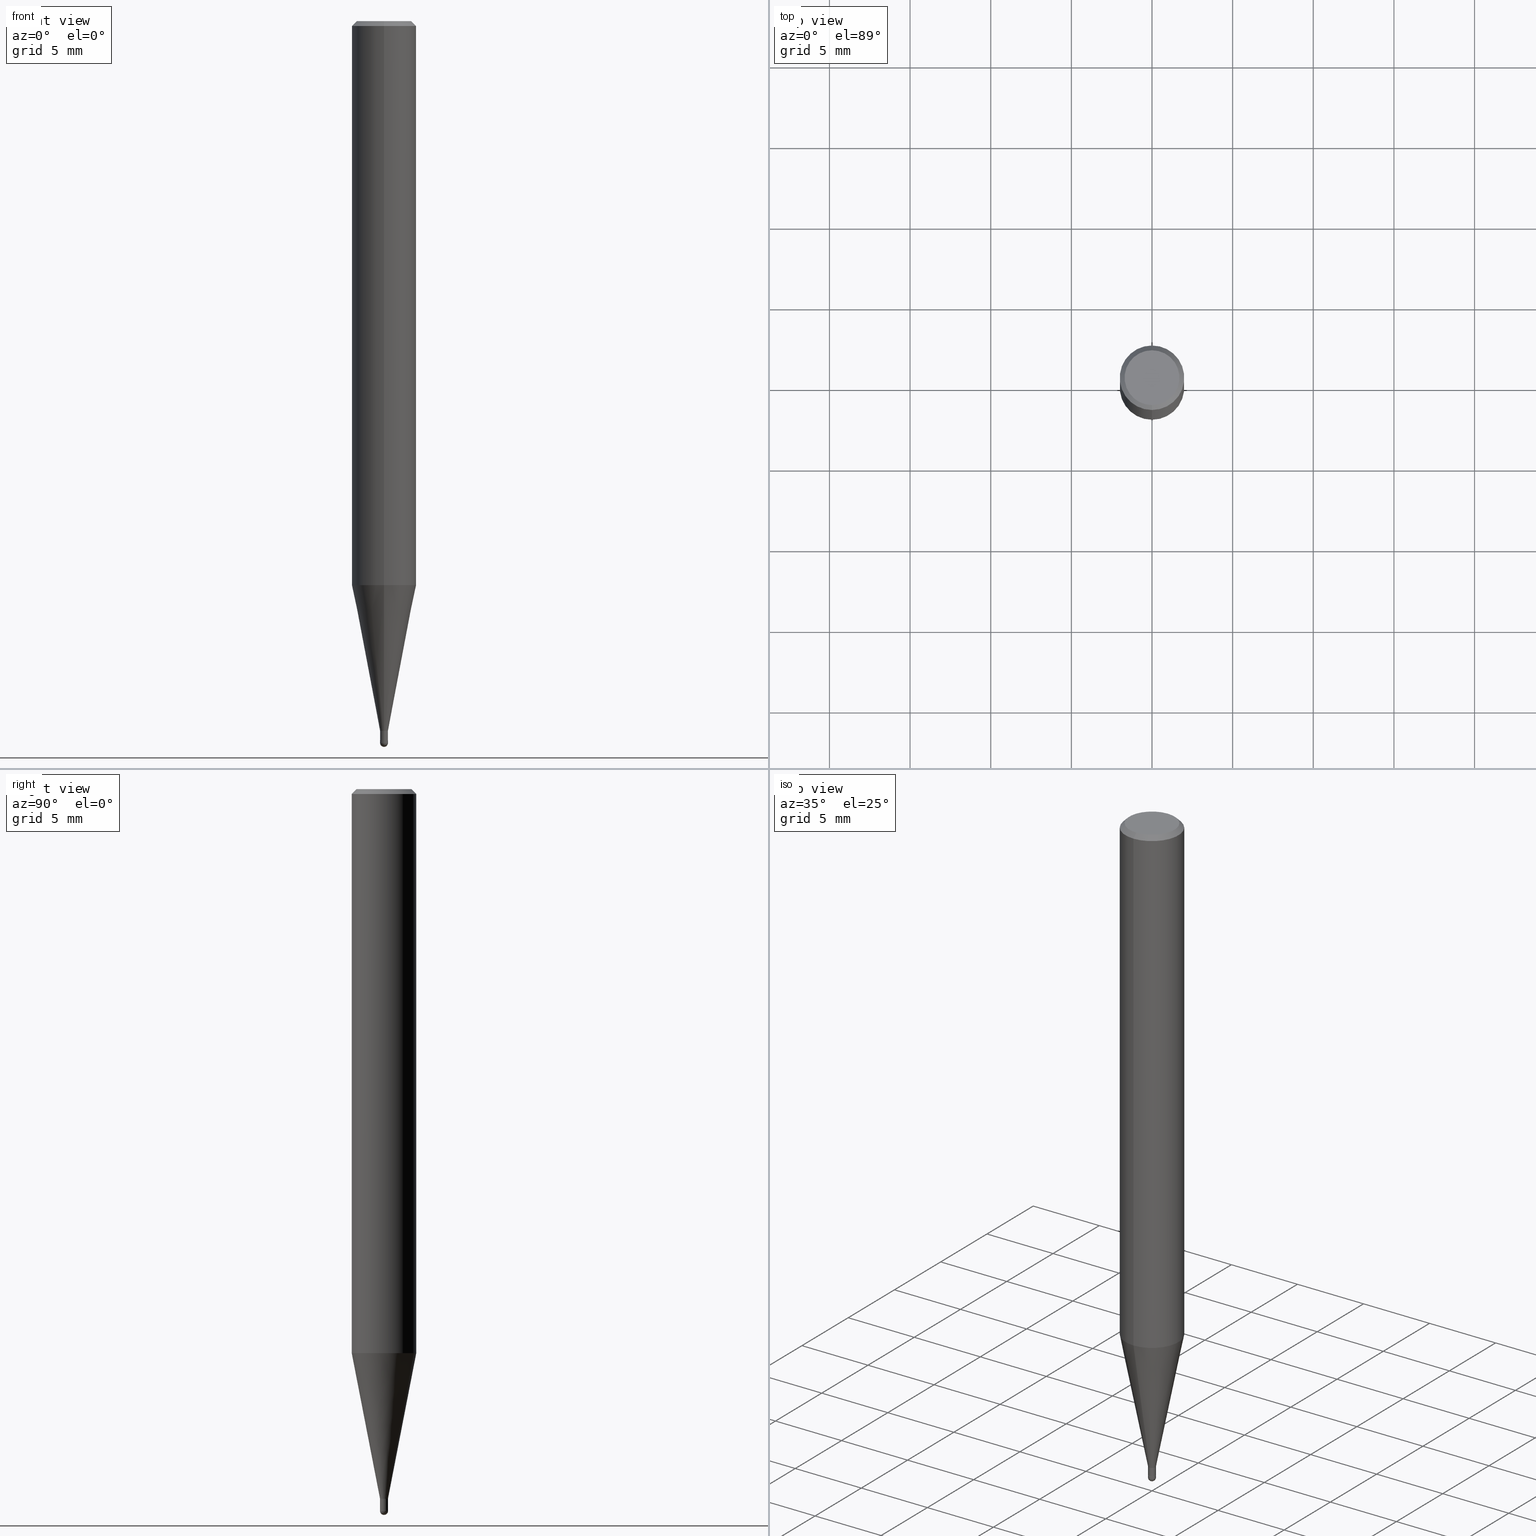
[diagram: canonical four-view strip — front | top / right | iso, engineering-drawing reading convention]
A machine part, canonical four-view strip (front | top / right | iso — engineering-drawing reading convention). The complete STEP part file that produces these views, byte-faithful:
ISO-10303-21;
HEADER;
FILE_DESCRIPTION(('no description'),'unknown implementation level');
FILE_NAME('CSELB2005-010-Huellk.stp','  ',('CIMSOURCE GmbH'),('CADClick - KiM GmbH - www.kimweb.de'),'unknown preprocess','ACIS','unknown authorization');
FILE_SCHEMA(('automotive_design'));
ENDSEC;
DATA;
#1=MECHANICAL_DESIGN_GEOMETRIC_PRESENTATION_REPRESENTATION(' ',(#14,#15,#16,#17,#18,#19,#20,#21,#22,#23,#24,#25,#26,#27,#28,#29,#30,#31,#32,#33,#34,#35,#36,#37,#38,#39,#40,#41,#42,#43,#44,#45,#46,#47,#48,#49,#50,#51,#52,#53,#54,#55,#56,#57,#58,#59,#60,#61,#62,#63,#64,#65,#66,#67,#68,#69,#70,#71,#72,#73,#74),#10);
#2=PRODUCT_DEFINITION_CONTEXT('',#75,'design');
#3=APPLICATION_PROTOCOL_DEFINITION('INTERNATIONAL STANDARD','automotive_design',1994,#75);
#4=PRODUCT_CATEGORY_RELATIONSHIP('NONE','NONE',#76,#77);
#5=SHAPE_DEFINITION_REPRESENTATION(#78,#79);
#6=PRODUCT_DEFINITION_CONTEXT('',#80,'design');
#7=APPLICATION_PROTOCOL_DEFINITION('INTERNATIONAL STANDARD','automotive_design',1994,#80);
#8=PRODUCT_CATEGORY_RELATIONSHIP('NONE','NONE',#81,#82);
#9=SHAPE_DEFINITION_REPRESENTATION(#83,#84);
#10= (GEOMETRIC_REPRESENTATION_CONTEXT(3)GLOBAL_UNCERTAINTY_ASSIGNED_CONTEXT((#87))GLOBAL_UNIT_ASSIGNED_CONTEXT((#89,#90,#91))REPRESENTATION_CONTEXT('NONE','WORKSPACE'));
#14=STYLED_ITEM('',(#93),#94);
#15=STYLED_ITEM('',(#95),#96);
#16=STYLED_ITEM('',(#97),#98);
#17=STYLED_ITEM('',(#99),#100);
#18=STYLED_ITEM('',(#101),#102);
#19=STYLED_ITEM('',(#103),#104);
#20=STYLED_ITEM('',(#105),#106);
#21=STYLED_ITEM('',(#107),#108);
#22=STYLED_ITEM('',(#109),#110);
#23=STYLED_ITEM('',(#111),#112);
#24=STYLED_ITEM('',(#113),#114);
#25=STYLED_ITEM('',(#115),#116);
#26=STYLED_ITEM('',(#117),#118);
#27=STYLED_ITEM('',(#119),#120);
#28=STYLED_ITEM('',(#121),#122);
#29=STYLED_ITEM('',(#123),#124);
#30=STYLED_ITEM('',(#125),#126);
#31=STYLED_ITEM('',(#127),#128);
#32=STYLED_ITEM('',(#129),#130);
#33=STYLED_ITEM('',(#131),#132);
#34=STYLED_ITEM('',(#133),#134);
#35=STYLED_ITEM('',(#135),#136);
#36=STYLED_ITEM('',(#137),#138);
#37=STYLED_ITEM('',(#139),#140);
#38=STYLED_ITEM('',(#141),#142);
#39=STYLED_ITEM('',(#143),#144);
#40=STYLED_ITEM('',(#145),#146);
#41=STYLED_ITEM('',(#147),#148);
#42=STYLED_ITEM('',(#149),#150);
#43=STYLED_ITEM('',(#151),#152);
#44=STYLED_ITEM('',(#153),#154);
#45=STYLED_ITEM('',(#155),#156);
#46=STYLED_ITEM('',(#157),#158);
#47=STYLED_ITEM('',(#159),#160);
#48=STYLED_ITEM('',(#161),#162);
#49=STYLED_ITEM('',(#163),#164);
#50=STYLED_ITEM('',(#165),#166);
#51=STYLED_ITEM('',(#167),#168);
#52=STYLED_ITEM('',(#169),#170);
#53=STYLED_ITEM('',(#171),#172);
#54=STYLED_ITEM('',(#173),#174);
#55=STYLED_ITEM('',(#175),#176);
#56=STYLED_ITEM('',(#177),#178);
#57=STYLED_ITEM('',(#179),#180);
#58=STYLED_ITEM('',(#181),#182);
#59=STYLED_ITEM('',(#183),#184);
#60=STYLED_ITEM('',(#185),#186);
#61=STYLED_ITEM('',(#187),#188);
#62=STYLED_ITEM('',(#189),#190);
#63=STYLED_ITEM('',(#191),#192);
#64=STYLED_ITEM('',(#193),#194);
#65=STYLED_ITEM('',(#195),#196);
#66=STYLED_ITEM('',(#197),#198);
#67=STYLED_ITEM('',(#199),#200);
#68=STYLED_ITEM('',(#201),#202);
#69=STYLED_ITEM('',(#203),#204);
#70=STYLED_ITEM('',(#205),#206);
#71=STYLED_ITEM('',(#207),#208);
#72=STYLED_ITEM('',(#209),#210);
#73=STYLED_ITEM('',(#211),#212);
#74=STYLED_ITEM('',(#213),#214);
#75=APPLICATION_CONTEXT(' ');
#76=PRODUCT_CATEGORY('part','NONE');
#77=PRODUCT_RELATED_PRODUCT_CATEGORY('detail',' ',(#215));
#78=PRODUCT_DEFINITION_SHAPE('NONE','NONE',#216);
#79=ADVANCED_BREP_SHAPE_REPRESENTATION('1',(#140,#217),#10);
#80=APPLICATION_CONTEXT(' ');
#81=PRODUCT_CATEGORY('part','NONE');
#82=PRODUCT_RELATED_PRODUCT_CATEGORY('detail',' ',(#218));
#83=PRODUCT_DEFINITION_SHAPE('NONE','NONE',#219);
#84=ADVANCED_BREP_SHAPE_REPRESENTATION('2',(#182,#220),#10);
#87=UNCERTAINTY_MEASURE_WITH_UNIT(LENGTH_MEASURE(1.0E-006),#89,'','');
#89= (CONVERSION_BASED_UNIT('MILLIMETRE',#223)LENGTH_UNIT()NAMED_UNIT(#226));
#90= (NAMED_UNIT(#228)PLANE_ANGLE_UNIT()SI_UNIT($,.RADIAN.));
#91= (NAMED_UNIT(#228)SOLID_ANGLE_UNIT()SI_UNIT($,.STERADIAN.));
#93=PRESENTATION_STYLE_ASSIGNMENT((#234));
#94=VERTEX_POINT('',#235);
#95=PRESENTATION_STYLE_ASSIGNMENT((#236));
#96=EDGE_CURVE('',#112,#204,#237,.T.);
#97=PRESENTATION_STYLE_ASSIGNMENT((#238));
#98=VERTEX_POINT('',#239);
#99=PRESENTATION_STYLE_ASSIGNMENT((#240));
#100=EDGE_CURVE('',#208,#188,#241,.T.);
#101=PRESENTATION_STYLE_ASSIGNMENT((#242));
#102=EDGE_CURVE('',#214,#158,#243,.T.);
#103=PRESENTATION_STYLE_ASSIGNMENT((#244));
#104=EDGE_CURVE('',#132,#112,#245,.T.);
#105=PRESENTATION_STYLE_ASSIGNMENT((#246));
#106=EDGE_CURVE('',#204,#170,#247,.T.);
#107=PRESENTATION_STYLE_ASSIGNMENT((#248));
#108=ADVANCED_FACE('',(#249),#250,.T.);
#109=PRESENTATION_STYLE_ASSIGNMENT((#251));
#110=ADVANCED_FACE('',(#252),#253,.T.);
#111=PRESENTATION_STYLE_ASSIGNMENT((#254));
#112=VERTEX_POINT('',#255);
#113=PRESENTATION_STYLE_ASSIGNMENT((#256));
#114=EDGE_CURVE('',#132,#148,#257,.T.);
#115=PRESENTATION_STYLE_ASSIGNMENT((#258));
#116=EDGE_CURVE('',#170,#166,#259,.T.);
#117=PRESENTATION_STYLE_ASSIGNMENT((#260));
#118=EDGE_CURVE('',#148,#132,#261,.T.);
#119=PRESENTATION_STYLE_ASSIGNMENT((#262));
#120=EDGE_CURVE('',#198,#150,#263,.T.);
#121=PRESENTATION_STYLE_ASSIGNMENT((#264));
#122=EDGE_CURVE('',#112,#166,#265,.T.);
#123=PRESENTATION_STYLE_ASSIGNMENT((#266));
#124=ADVANCED_FACE('',(#267),#268,.T.);
#125=PRESENTATION_STYLE_ASSIGNMENT((#269));
#126=VERTEX_POINT('',#270);
#127=PRESENTATION_STYLE_ASSIGNMENT((#271));
#128=ADVANCED_FACE('',(#272),#273,.T.);
#129=PRESENTATION_STYLE_ASSIGNMENT((#274));
#130=EDGE_CURVE('',#208,#98,#275,.T.);
#131=PRESENTATION_STYLE_ASSIGNMENT((#276));
#132=VERTEX_POINT('',#277);
#133=PRESENTATION_STYLE_ASSIGNMENT((#278));
#134=EDGE_CURVE('',#162,#94,#279,.T.);
#135=PRESENTATION_STYLE_ASSIGNMENT((#280));
#136=EDGE_CURVE('',#94,#162,#281,.T.);
#137=PRESENTATION_STYLE_ASSIGNMENT((#282));
#138=EDGE_CURVE('',#170,#204,#283,.T.);
#139=PRESENTATION_STYLE_ASSIGNMENT((#284));
#140=MANIFOLD_SOLID_BREP('1',#285);
#141=PRESENTATION_STYLE_ASSIGNMENT((#286));
#142=EDGE_CURVE('',#150,#198,#287,.T.);
#143=PRESENTATION_STYLE_ASSIGNMENT((#288));
#144=EDGE_CURVE('',#166,#112,#289,.T.);
#145=PRESENTATION_STYLE_ASSIGNMENT((#290));
#146=EDGE_CURVE('',#158,#214,#291,.T.);
#147=PRESENTATION_STYLE_ASSIGNMENT((#292));
#148=VERTEX_POINT('',#293);
#149=PRESENTATION_STYLE_ASSIGNMENT((#294));
#150=VERTEX_POINT('',#295);
#151=PRESENTATION_STYLE_ASSIGNMENT((#296));
#152=ADVANCED_FACE('',(#297),#298,.T.);
#153=PRESENTATION_STYLE_ASSIGNMENT((#299));
#154=ADVANCED_FACE('',(#300),#301,.T.);
#155=PRESENTATION_STYLE_ASSIGNMENT((#302));
#156=EDGE_CURVE('',#166,#148,#303,.T.);
#157=PRESENTATION_STYLE_ASSIGNMENT((#304));
#158=VERTEX_POINT('',#305);
#159=PRESENTATION_STYLE_ASSIGNMENT((#306));
#160=EDGE_CURVE('',#126,#188,#307,.T.);
#161=PRESENTATION_STYLE_ASSIGNMENT((#308));
#162=VERTEX_POINT('',#309);
#163=PRESENTATION_STYLE_ASSIGNMENT((#310));
#164=ADVANCED_FACE('',(#311),#312,.T.);
#165=PRESENTATION_STYLE_ASSIGNMENT((#313));
#166=VERTEX_POINT('',#314);
#167=PRESENTATION_STYLE_ASSIGNMENT((#315));
#168=EDGE_CURVE('',#126,#98,#316,.T.);
#169=PRESENTATION_STYLE_ASSIGNMENT((#317));
#170=VERTEX_POINT('',#318);
#171=PRESENTATION_STYLE_ASSIGNMENT((#319));
#172=ADVANCED_FACE('',(#320),#321,.T.);
#173=PRESENTATION_STYLE_ASSIGNMENT((#322));
#174=ADVANCED_FACE('',(#323),#324,.T.);
#175=PRESENTATION_STYLE_ASSIGNMENT((#325));
#176=ADVANCED_FACE('',(#326,#327),#328,.T.);
#177=PRESENTATION_STYLE_ASSIGNMENT((#329));
#178=EDGE_CURVE('',#162,#150,#330,.T.);
#179=PRESENTATION_STYLE_ASSIGNMENT((#331));
#180=EDGE_CURVE('',#98,#126,#332,.T.);
#181=PRESENTATION_STYLE_ASSIGNMENT((#333));
#182=MANIFOLD_SOLID_BREP('2',#334);
#183=PRESENTATION_STYLE_ASSIGNMENT((#335));
#184=ADVANCED_FACE('',(#336),#337,.T.);
#185=PRESENTATION_STYLE_ASSIGNMENT((#338));
#186=ADVANCED_FACE('',(#339),#340,.T.);
#187=PRESENTATION_STYLE_ASSIGNMENT((#341));
#188=VERTEX_POINT('',#342);
#189=PRESENTATION_STYLE_ASSIGNMENT((#343));
#190=ADVANCED_FACE('',(#344),#345,.T.);
#191=PRESENTATION_STYLE_ASSIGNMENT((#346));
#192=ADVANCED_FACE('',(#347),#348,.T.);
#193=PRESENTATION_STYLE_ASSIGNMENT((#349));
#194=ADVANCED_FACE('',(#350),#351,.T.);
#195=PRESENTATION_STYLE_ASSIGNMENT((#352));
#196=EDGE_CURVE('',#188,#158,#353,.T.);
#197=PRESENTATION_STYLE_ASSIGNMENT((#354));
#198=VERTEX_POINT('',#355);
#199=PRESENTATION_STYLE_ASSIGNMENT((#356));
#200=EDGE_CURVE('',#198,#150,#357,.T.);
#201=PRESENTATION_STYLE_ASSIGNMENT((#358));
#202=ADVANCED_FACE('',(#359),#360,.T.);
#203=PRESENTATION_STYLE_ASSIGNMENT((#361));
#204=VERTEX_POINT('',#362);
#205=PRESENTATION_STYLE_ASSIGNMENT((#363));
#206=EDGE_CURVE('',#198,#94,#364,.T.);
#207=PRESENTATION_STYLE_ASSIGNMENT((#365));
#208=VERTEX_POINT('',#366);
#209=PRESENTATION_STYLE_ASSIGNMENT((#367));
#210=EDGE_CURVE('',#188,#208,#368,.T.);
#211=PRESENTATION_STYLE_ASSIGNMENT((#369));
#212=EDGE_CURVE('',#214,#208,#370,.T.);
#213=PRESENTATION_STYLE_ASSIGNMENT((#371));
#214=VERTEX_POINT('',#372);
#215=PRODUCT('1','1','PART-1-DESC',(#373));
#216=PRODUCT_DEFINITION('NONE','NONE',#374,#2);
#217=AXIS2_PLACEMENT_3D('',#375,#376,#377);
#218=PRODUCT('2','2','PART-2-DESC',(#378));
#219=PRODUCT_DEFINITION('NONE','NONE',#379,#6);
#220=AXIS2_PLACEMENT_3D('',#380,#381,#382);
#223=LENGTH_MEASURE_WITH_UNIT(LENGTH_MEASURE(1.0),#383);
#226=DIMENSIONAL_EXPONENTS(1.0,0.0,0.0,0.0,0.0,0.0,0.0);
#228=DIMENSIONAL_EXPONENTS(0.0,0.0,0.0,0.0,0.0,0.0,0.0);
#234=POINT_STYLE(' ',#384,POSITIVE_LENGTH_MEASURE(1.0E-006),#385);
#235=CARTESIAN_POINT('',(3.06029127820212E-017,-0.2499,-44.6));
#236=CURVE_STYLE('',#386,POSITIVE_LENGTH_MEASURE(1.0E-006),#387);
#237=LINE('',#388,#389);
#238=POINT_STYLE(' ',#390,POSITIVE_LENGTH_MEASURE(1.0E-006),#391);
#239=CARTESIAN_POINT('',(2.08183080149804E-016,-1.7,0.0));
#240=CURVE_STYLE('',#392,POSITIVE_LENGTH_MEASURE(1.0E-006),#393);
#241=CIRCLE('',#394,2.0);
#242=CURVE_STYLE('',#395,POSITIVE_LENGTH_MEASURE(1.0E-006),#396);
#243=CIRCLE('',#397,2.0);
#244=CURVE_STYLE('',#398,POSITIVE_LENGTH_MEASURE(1.0E-006),#399);
#245=LINE('',#400,#401);
#246=CURVE_STYLE('',#402,POSITIVE_LENGTH_MEASURE(1.0E-006),#403);
#247=CIRCLE('',#404,0.24495);
#248=SURFACE_STYLE_USAGE(.BOTH.,#405);
#249=FACE_OUTER_BOUND('',#406,.T.);
#250=PLANE('',#407);
#251=SURFACE_STYLE_USAGE(.BOTH.,#408);
#252=FACE_OUTER_BOUND('',#409,.T.);
#253=CONICAL_SURFACE('',#410,0.24995,0.000666666567901188);
#254=POINT_STYLE(' ',#411,POSITIVE_LENGTH_MEASURE(1.0E-006),#412);
#255=CARTESIAN_POINT('',(0.0,0.24495,-44.0));
#256=CURVE_STYLE('',#413,POSITIVE_LENGTH_MEASURE(1.0E-006),#414);
#257=CIRCLE('',#415,1.99995);
#258=CURVE_STYLE('',#416,POSITIVE_LENGTH_MEASURE(1.0E-006),#417);
#259=LINE('',#418,#419);
#260=CURVE_STYLE('',#420,POSITIVE_LENGTH_MEASURE(1.0E-006),#421);
#261=CIRCLE('',#422,1.99995);
#262=CURVE_STYLE('',#423,POSITIVE_LENGTH_MEASURE(1.0E-006),#424);
#263=CIRCLE('',#425,0.25);
#264=CURVE_STYLE('',#426,POSITIVE_LENGTH_MEASURE(1.0E-006),#427);
#265=CIRCLE('',#428,0.24495);
#266=SURFACE_STYLE_USAGE(.BOTH.,#429);
#267=FACE_OUTER_BOUND('',#430,.T.);
#268=CYLINDRICAL_SURFACE('',#431,2.0);
#269=POINT_STYLE(' ',#432,POSITIVE_LENGTH_MEASURE(1.0E-006),#433);
#270=CARTESIAN_POINT('',(0.0,1.7,0.0));
#271=SURFACE_STYLE_USAGE(.BOTH.,#434);
#272=FACE_OUTER_BOUND('',#435,.T.);
#273=CONICAL_SURFACE('',#436,1.12245,0.191979834546789);
#274=CURVE_STYLE('',#437,POSITIVE_LENGTH_MEASURE(1.0E-006),#438);
#275=LINE('',#439,#440);
#276=POINT_STYLE(' ',#441,POSITIVE_LENGTH_MEASURE(1.0E-006),#442);
#277=CARTESIAN_POINT('',(0.0,1.99995,-34.971));
#278=CURVE_STYLE('',#443,POSITIVE_LENGTH_MEASURE(1.0E-006),#444);
#279=CIRCLE('',#445,0.2499);
#280=CURVE_STYLE('',#446,POSITIVE_LENGTH_MEASURE(1.0E-006),#447);
#281=CIRCLE('',#448,0.2499);
#282=CURVE_STYLE('',#449,POSITIVE_LENGTH_MEASURE(1.0E-006),#450);
#283=CIRCLE('',#451,0.24495);
#284=SURFACE_STYLE_USAGE(.BOTH.,#452);
#285=CLOSED_SHELL('',(#186,#192,#174,#184,#176,#152,#164,#124,#128,#190,#154));
#286=CURVE_STYLE('',#453,POSITIVE_LENGTH_MEASURE(1.0E-006),#454);
#287=CIRCLE('',#455,0.25);
#288=CURVE_STYLE('',#456,POSITIVE_LENGTH_MEASURE(1.0E-006),#457);
#289=CIRCLE('',#458,0.24495);
#290=CURVE_STYLE('',#459,POSITIVE_LENGTH_MEASURE(1.0E-006),#460);
#291=CIRCLE('',#461,2.0);
#292=POINT_STYLE(' ',#462,POSITIVE_LENGTH_MEASURE(1.0E-006),#463);
#293=CARTESIAN_POINT('',(2.44915147732706E-016,-1.99995,-34.971));
#294=POINT_STYLE(' ',#464,POSITIVE_LENGTH_MEASURE(1.0E-006),#465);
#295=CARTESIAN_POINT('',(0.0,0.25,-44.75));
#296=SURFACE_STYLE_USAGE(.BOTH.,#466);
#297=FACE_OUTER_BOUND('',#467,.T.);
#298=PLANE('',#468);
#299=SURFACE_STYLE_USAGE(.BOTH.,#469);
#300=FACE_OUTER_BOUND('',#470,.T.);
#301=PLANE('',#471);
#302=CURVE_STYLE('',#472,POSITIVE_LENGTH_MEASURE(1.0E-006),#473);
#303=LINE('',#474,#475);
#304=POINT_STYLE(' ',#476,POSITIVE_LENGTH_MEASURE(1.0E-006),#477);
#305=CARTESIAN_POINT('',(0.0,2.0,-34.971));
#306=CURVE_STYLE('',#478,POSITIVE_LENGTH_MEASURE(1.0E-006),#479);
#307=LINE('',#480,#481);
#308=POINT_STYLE(' ',#482,POSITIVE_LENGTH_MEASURE(1.0E-006),#483);
#309=CARTESIAN_POINT('',(0.0,0.2499,-44.6));
#310=SURFACE_STYLE_USAGE(.BOTH.,#484);
#311=FACE_OUTER_BOUND('',#485,.T.);
#312=CONICAL_SURFACE('',#486,1.85,0.785398163397453);
#313=POINT_STYLE(' ',#487,POSITIVE_LENGTH_MEASURE(1.0E-006),#488);
#314=CARTESIAN_POINT('',(2.99967326368791E-017,-0.24495,-44.0));
#315=CURVE_STYLE('',#489,POSITIVE_LENGTH_MEASURE(1.0E-006),#490);
#316=CIRCLE('',#491,1.7);
#317=POINT_STYLE(' ',#492,POSITIVE_LENGTH_MEASURE(1.0E-006),#493);
#318=CARTESIAN_POINT('',(2.99967326368791E-017,-0.24495,-44.6));
#319=SURFACE_STYLE_USAGE(.BOTH.,#494);
#320=FACE_OUTER_BOUND('',#495,.T.);
#321=SPHERICAL_SURFACE('',#496,0.25);
#322=SURFACE_STYLE_USAGE(.BOTH.,#497);
#323=FACE_OUTER_BOUND('',#498,.T.);
#324=CYLINDRICAL_SURFACE('',#499,2.0);
#325=SURFACE_STYLE_USAGE(.BOTH.,#500);
#326=FACE_OUTER_BOUND('',#501,.T.);
#327=FACE_BOUND('',#502,.T.);
#328=PLANE('',#503);
#329=CURVE_STYLE('',#504,POSITIVE_LENGTH_MEASURE(1.0E-006),#505);
#330=LINE('',#506,#507);
#331=CURVE_STYLE('',#508,POSITIVE_LENGTH_MEASURE(1.0E-006),#509);
#332=CIRCLE('',#510,1.7);
#333=SURFACE_STYLE_USAGE(.BOTH.,#511);
#334=CLOSED_SHELL('',(#172,#194,#108,#110,#202));
#335=SURFACE_STYLE_USAGE(.BOTH.,#512);
#336=FACE_OUTER_BOUND('',#513,.T.);
#337=CONICAL_SURFACE('',#514,1.85,0.785398163397453);
#338=SURFACE_STYLE_USAGE(.BOTH.,#515);
#339=FACE_OUTER_BOUND('',#516,.T.);
#340=CYLINDRICAL_SURFACE('',#517,0.24495);
#341=POINT_STYLE(' ',#518,POSITIVE_LENGTH_MEASURE(1.0E-006),#519);
#342=CARTESIAN_POINT('',(0.0,2.0,-0.299999999999997));
#343=SURFACE_STYLE_USAGE(.BOTH.,#520);
#344=FACE_OUTER_BOUND('',#521,.T.);
#345=CYLINDRICAL_SURFACE('',#522,0.24495);
#346=SURFACE_STYLE_USAGE(.BOTH.,#523);
#347=FACE_OUTER_BOUND('',#524,.T.);
#348=CONICAL_SURFACE('',#525,1.12245,0.191979834546789);
#349=SURFACE_STYLE_USAGE(.BOTH.,#526);
#350=FACE_OUTER_BOUND('',#527,.T.);
#351=CONICAL_SURFACE('',#528,0.24995,0.000666666567901188);
#352=CURVE_STYLE('',#529,POSITIVE_LENGTH_MEASURE(1.0E-006),#530);
#353=LINE('',#531,#532);
#354=POINT_STYLE(' ',#533,POSITIVE_LENGTH_MEASURE(1.0E-006),#534);
#355=CARTESIAN_POINT('',(3.06151588455594E-017,-0.25,-44.75));
#356=CURVE_STYLE('',#535,POSITIVE_LENGTH_MEASURE(1.0E-006),#536);
#357=CIRCLE('',#537,0.25);
#358=SURFACE_STYLE_USAGE(.BOTH.,#538);
#359=FACE_OUTER_BOUND('',#539,.T.);
#360=SPHERICAL_SURFACE('',#540,0.25);
#361=POINT_STYLE(' ',#541,POSITIVE_LENGTH_MEASURE(1.0E-006),#542);
#362=CARTESIAN_POINT('',(0.0,0.24495,-44.6));
#363=CURVE_STYLE('',#543,POSITIVE_LENGTH_MEASURE(1.0E-006),#544);
#364=LINE('',#545,#546);
#365=POINT_STYLE(' ',#547,POSITIVE_LENGTH_MEASURE(1.0E-006),#548);
#366=CARTESIAN_POINT('',(2.44921270764475E-016,-2.0,-0.299999999999997));
#367=CURVE_STYLE('',#549,POSITIVE_LENGTH_MEASURE(1.0E-006),#550);
#368=CIRCLE('',#551,2.0);
#369=CURVE_STYLE('',#552,POSITIVE_LENGTH_MEASURE(1.0E-006),#553);
#370=LINE('',#554,#555);
#371=POINT_STYLE(' ',#556,POSITIVE_LENGTH_MEASURE(1.0E-006),#557);
#372=CARTESIAN_POINT('',(2.44921270764475E-016,-2.0,-34.971));
#373=PRODUCT_CONTEXT('',#75,'mechanical');
#374=PRODUCT_DEFINITION_FORMATION_WITH_SPECIFIED_SOURCE(' ','NONE',#215,.NOT_KNOWN.);
#375=CARTESIAN_POINT('',(0.0,0.0,0.0));
#376=DIRECTION('',(0.0,0.0,1.0));
#377=DIRECTION('',(1.0,0.0,0.0));
#378=PRODUCT_CONTEXT('',#80,'mechanical');
#379=PRODUCT_DEFINITION_FORMATION_WITH_SPECIFIED_SOURCE(' ','NONE',#218,.NOT_KNOWN.);
#380=CARTESIAN_POINT('',(0.0,0.0,0.0));
#381=DIRECTION('',(0.0,0.0,1.0));
#382=DIRECTION('',(1.0,0.0,0.0));
#383= (NAMED_UNIT(#226)LENGTH_UNIT()SI_UNIT(.MILLI.,.METRE.));
#384=PRE_DEFINED_MARKER('');
#385=COLOUR_RGB('',0.800000011920929,0.800000011920929,0.800000011920929);
#386=DRAUGHTING_PRE_DEFINED_CURVE_FONT('continuous');
#387=COLOUR_RGB('',0.498039215803146,0.498039215803146,0.498039215803146);
#388=CARTESIAN_POINT('',(-2.99967326368791E-017,0.24495,-44.3));
#389=VECTOR('',#559,1.0);
#390=PRE_DEFINED_MARKER('');
#391=COLOUR_RGB('',0.498039215803146,0.498039215803146,0.498039215803146);
#392=DRAUGHTING_PRE_DEFINED_CURVE_FONT('continuous');
#393=COLOUR_RGB('',0.498039215803146,0.498039215803146,0.498039215803146);
#394=AXIS2_PLACEMENT_3D('',#560,#561,#562);
#395=DRAUGHTING_PRE_DEFINED_CURVE_FONT('continuous');
#396=COLOUR_RGB('',0.498039215803146,0.498039215803146,0.498039215803146);
#397=AXIS2_PLACEMENT_3D('',#563,#564,#565);
#398=DRAUGHTING_PRE_DEFINED_CURVE_FONT('continuous');
#399=COLOUR_RGB('',0.498039215803146,0.498039215803146,0.498039215803146);
#400=CARTESIAN_POINT('',(-1.37455940184793E-016,1.12245,-39.4855));
#401=VECTOR('',#566,1.0);
#402=DRAUGHTING_PRE_DEFINED_CURVE_FONT('continuous');
#403=COLOUR_RGB('',0.498039215803146,0.498039215803146,0.498039215803146);
#404=AXIS2_PLACEMENT_3D('',#567,#568,#569);
#405=SURFACE_SIDE_STYLE('',(#570));
#406=EDGE_LOOP('',(#571,#572));
#407=AXIS2_PLACEMENT_3D('',#573,#574,#575);
#408=SURFACE_SIDE_STYLE('',(#576));
#409=EDGE_LOOP('',(#577,#578,#579,#580));
#410=AXIS2_PLACEMENT_3D('',#581,#582,#583);
#411=PRE_DEFINED_MARKER('');
#412=COLOUR_RGB('',0.498039215803146,0.498039215803146,0.498039215803146);
#413=DRAUGHTING_PRE_DEFINED_CURVE_FONT('continuous');
#414=COLOUR_RGB('',0.498039215803146,0.498039215803146,0.498039215803146);
#415=AXIS2_PLACEMENT_3D('',#584,#585,#586);
#416=DRAUGHTING_PRE_DEFINED_CURVE_FONT('continuous');
#417=COLOUR_RGB('',0.498039215803146,0.498039215803146,0.498039215803146);
#418=CARTESIAN_POINT('',(2.99967326368791E-017,-0.24495,-44.3));
#419=VECTOR('',#587,1.0);
#420=DRAUGHTING_PRE_DEFINED_CURVE_FONT('continuous');
#421=COLOUR_RGB('',0.498039215803146,0.498039215803146,0.498039215803146);
#422=AXIS2_PLACEMENT_3D('',#588,#589,#590);
#423=DRAUGHTING_PRE_DEFINED_CURVE_FONT('continuous');
#424=COLOUR_RGB('',0.800000011920929,0.800000011920929,0.800000011920929);
#425=AXIS2_PLACEMENT_3D('',#591,#592,#593);
#426=DRAUGHTING_PRE_DEFINED_CURVE_FONT('continuous');
#427=COLOUR_RGB('',0.498039215803146,0.498039215803146,0.498039215803146);
#428=AXIS2_PLACEMENT_3D('',#594,#595,#596);
#429=SURFACE_SIDE_STYLE('',(#597));
#430=EDGE_LOOP('',(#598,#599,#600,#601));
#431=AXIS2_PLACEMENT_3D('',#602,#603,#604);
#432=PRE_DEFINED_MARKER('');
#433=COLOUR_RGB('',0.498039215803146,0.498039215803146,0.498039215803146);
#434=SURFACE_SIDE_STYLE('',(#605));
#435=EDGE_LOOP('',(#606,#607,#608,#609));
#436=AXIS2_PLACEMENT_3D('',#610,#611,#612);
#437=DRAUGHTING_PRE_DEFINED_CURVE_FONT('continuous');
#438=COLOUR_RGB('',0.498039215803146,0.498039215803146,0.498039215803146);
#439=CARTESIAN_POINT('',(2.2655217545714E-016,-1.85,-0.149999999999999));
#440=VECTOR('',#613,1.0);
#441=PRE_DEFINED_MARKER('');
#442=COLOUR_RGB('',0.498039215803146,0.498039215803146,0.498039215803146);
#443=DRAUGHTING_PRE_DEFINED_CURVE_FONT('continuous');
#444=COLOUR_RGB('',0.800000011920929,0.800000011920929,0.800000011920929);
#445=AXIS2_PLACEMENT_3D('',#614,#615,#616);
#446=DRAUGHTING_PRE_DEFINED_CURVE_FONT('continuous');
#447=COLOUR_RGB('',0.800000011920929,0.800000011920929,0.800000011920929);
#448=AXIS2_PLACEMENT_3D('',#617,#618,#619);
#449=DRAUGHTING_PRE_DEFINED_CURVE_FONT('continuous');
#450=COLOUR_RGB('',0.498039215803146,0.498039215803146,0.498039215803146);
#451=AXIS2_PLACEMENT_3D('',#620,#621,#622);
#452=SURFACE_SIDE_STYLE('',(#623));
#453=DRAUGHTING_PRE_DEFINED_CURVE_FONT('continuous');
#454=COLOUR_RGB('',0.800000011920929,0.800000011920929,0.800000011920929);
#455=AXIS2_PLACEMENT_3D('',#624,#625,#626);
#456=DRAUGHTING_PRE_DEFINED_CURVE_FONT('continuous');
#457=COLOUR_RGB('',0.498039215803146,0.498039215803146,0.498039215803146);
#458=AXIS2_PLACEMENT_3D('',#627,#628,#629);
#459=DRAUGHTING_PRE_DEFINED_CURVE_FONT('continuous');
#460=COLOUR_RGB('',0.498039215803146,0.498039215803146,0.498039215803146);
#461=AXIS2_PLACEMENT_3D('',#630,#631,#632);
#462=PRE_DEFINED_MARKER('');
#463=COLOUR_RGB('',0.498039215803146,0.498039215803146,0.498039215803146);
#464=PRE_DEFINED_MARKER('');
#465=COLOUR_RGB('',0.800000011920929,0.800000011920929,0.800000011920929);
#466=SURFACE_SIDE_STYLE('',(#633));
#467=EDGE_LOOP('',(#634,#635));
#468=AXIS2_PLACEMENT_3D('',#636,#637,#638);
#469=SURFACE_SIDE_STYLE('',(#639));
#470=EDGE_LOOP('',(#640,#641));
#471=AXIS2_PLACEMENT_3D('',#642,#643,#644);
#472=DRAUGHTING_PRE_DEFINED_CURVE_FONT('continuous');
#473=COLOUR_RGB('',0.498039215803146,0.498039215803146,0.498039215803146);
#474=CARTESIAN_POINT('',(1.37455940184793E-016,-1.12245,-39.4855));
#475=VECTOR('',#645,1.0);
#476=PRE_DEFINED_MARKER('');
#477=COLOUR_RGB('',0.498039215803146,0.498039215803146,0.498039215803146);
#478=DRAUGHTING_PRE_DEFINED_CURVE_FONT('continuous');
#479=COLOUR_RGB('',0.498039215803146,0.498039215803146,0.498039215803146);
#480=CARTESIAN_POINT('',(-2.2655217545714E-016,1.85,-0.149999999999999));
#481=VECTOR('',#646,1.0);
#482=PRE_DEFINED_MARKER('');
#483=COLOUR_RGB('',0.800000011920929,0.800000011920929,0.800000011920929);
#484=SURFACE_SIDE_STYLE('',(#647));
#485=EDGE_LOOP('',(#648,#649,#650,#651));
#486=AXIS2_PLACEMENT_3D('',#652,#653,#654);
#487=PRE_DEFINED_MARKER('');
#488=COLOUR_RGB('',0.498039215803146,0.498039215803146,0.498039215803146);
#489=DRAUGHTING_PRE_DEFINED_CURVE_FONT('continuous');
#490=COLOUR_RGB('',0.498039215803146,0.498039215803146,0.498039215803146);
#491=AXIS2_PLACEMENT_3D('',#655,#656,#657);
#492=PRE_DEFINED_MARKER('');
#493=COLOUR_RGB('',0.498039215803146,0.498039215803146,0.498039215803146);
#494=SURFACE_SIDE_STYLE('',(#658));
#495=EDGE_LOOP('',(#659,#660));
#496=AXIS2_PLACEMENT_3D('',#661,#662,#663);
#497=SURFACE_SIDE_STYLE('',(#664));
#498=EDGE_LOOP('',(#665,#666,#667,#668));
#499=AXIS2_PLACEMENT_3D('',#669,#670,#671);
#500=SURFACE_SIDE_STYLE('',(#672));
#501=EDGE_LOOP('',(#673,#674));
#502=EDGE_LOOP('',(#675,#676));
#503=AXIS2_PLACEMENT_3D('',#677,#678,#679);
#504=DRAUGHTING_PRE_DEFINED_CURVE_FONT('continuous');
#505=COLOUR_RGB('',0.800000011920929,0.800000011920929,0.800000011920929);
#506=CARTESIAN_POINT('',(-3.06090358137903E-017,0.24995,-44.675));
#507=VECTOR('',#680,1.0);
#508=DRAUGHTING_PRE_DEFINED_CURVE_FONT('continuous');
#509=COLOUR_RGB('',0.498039215803146,0.498039215803146,0.498039215803146);
#510=AXIS2_PLACEMENT_3D('',#681,#682,#683);
#511=SURFACE_SIDE_STYLE('',(#684));
#512=SURFACE_SIDE_STYLE('',(#685));
#513=EDGE_LOOP('',(#686,#687,#688,#689));
#514=AXIS2_PLACEMENT_3D('',#690,#691,#692);
#515=SURFACE_SIDE_STYLE('',(#693));
#516=EDGE_LOOP('',(#694,#695,#696,#697));
#517=AXIS2_PLACEMENT_3D('',#698,#699,#700);
#518=PRE_DEFINED_MARKER('');
#519=COLOUR_RGB('',0.498039215803146,0.498039215803146,0.498039215803146);
#520=SURFACE_SIDE_STYLE('',(#701));
#521=EDGE_LOOP('',(#702,#703,#704,#705));
#522=AXIS2_PLACEMENT_3D('',#706,#707,#708);
#523=SURFACE_SIDE_STYLE('',(#709));
#524=EDGE_LOOP('',(#710,#711,#712,#713));
#525=AXIS2_PLACEMENT_3D('',#714,#715,#716);
#526=SURFACE_SIDE_STYLE('',(#717));
#527=EDGE_LOOP('',(#718,#719,#720,#721));
#528=AXIS2_PLACEMENT_3D('',#722,#723,#724);
#529=DRAUGHTING_PRE_DEFINED_CURVE_FONT('continuous');
#530=COLOUR_RGB('',0.498039215803146,0.498039215803146,0.498039215803146);
#531=CARTESIAN_POINT('',(-2.44921270764475E-016,2.0,-17.6355));
#532=VECTOR('',#725,1.0);
#533=PRE_DEFINED_MARKER('');
#534=COLOUR_RGB('',0.800000011920929,0.800000011920929,0.800000011920929);
#535=DRAUGHTING_PRE_DEFINED_CURVE_FONT('continuous');
#536=COLOUR_RGB('',0.800000011920929,0.800000011920929,0.800000011920929);
#537=AXIS2_PLACEMENT_3D('',#726,#727,#728);
#538=SURFACE_SIDE_STYLE('',(#729));
#539=EDGE_LOOP('',(#730,#731));
#540=AXIS2_PLACEMENT_3D('',#732,#733,#734);
#541=PRE_DEFINED_MARKER('');
#542=COLOUR_RGB('',0.498039215803146,0.498039215803146,0.498039215803146);
#543=DRAUGHTING_PRE_DEFINED_CURVE_FONT('continuous');
#544=COLOUR_RGB('',0.800000011920929,0.800000011920929,0.800000011920929);
#545=CARTESIAN_POINT('',(3.06090358137903E-017,-0.24995,-44.675));
#546=VECTOR('',#735,1.0);
#547=PRE_DEFINED_MARKER('');
#548=COLOUR_RGB('',0.498039215803146,0.498039215803146,0.498039215803146);
#549=DRAUGHTING_PRE_DEFINED_CURVE_FONT('continuous');
#550=COLOUR_RGB('',0.498039215803146,0.498039215803146,0.498039215803146);
#551=AXIS2_PLACEMENT_3D('',#736,#737,#738);
#552=DRAUGHTING_PRE_DEFINED_CURVE_FONT('continuous');
#553=COLOUR_RGB('',0.498039215803146,0.498039215803146,0.498039215803146);
#554=CARTESIAN_POINT('',(2.44921270764475E-016,-2.0,-17.6355));
#555=VECTOR('',#739,1.0);
#556=PRE_DEFINED_MARKER('');
#557=COLOUR_RGB('',0.498039215803146,0.498039215803146,0.498039215803146);
#559=DIRECTION('',(0.0,0.0,-1.0));
#560=CARTESIAN_POINT('',(0.0,0.0,-0.299999999999997));
#561=DIRECTION('',(0.0,0.0,-1.0));
#562=DIRECTION('',(0.0,1.0,0.0));
#563=CARTESIAN_POINT('',(0.0,0.0,-34.971));
#564=DIRECTION('',(0.0,0.0,-1.0));
#565=DIRECTION('',(0.0,1.0,0.0));
#566=DIRECTION('',(2.336582348441E-017,-0.19080272947693,-0.981628401394414));
#567=CARTESIAN_POINT('',(0.0,0.0,-44.6));
#568=DIRECTION('',(0.0,0.0,-1.0));
#569=DIRECTION('',(0.0,1.0,0.0));
#570=SURFACE_STYLE_FILL_AREA(#740);
#571=ORIENTED_EDGE('',*,*,#134,.F.);
#572=ORIENTED_EDGE('',*,*,#136,.F.);
#573=CARTESIAN_POINT('',(0.0,0.12495,-44.6));
#574=DIRECTION('',(-0.0,0.0,1.0));
#575=DIRECTION('',(0.0,-1.0,0.0));
#576=SURFACE_STYLE_FILL_AREA(#741);
#577=ORIENTED_EDGE('',*,*,#178,.T.);
#578=ORIENTED_EDGE('',*,*,#120,.F.);
#579=ORIENTED_EDGE('',*,*,#206,.T.);
#580=ORIENTED_EDGE('',*,*,#136,.T.);
#581=CARTESIAN_POINT('',(0.0,0.0,-44.675));
#582=DIRECTION('',(0.0,-0.0,-1.0));
#583=DIRECTION('',(0.0,1.0,0.0));
#584=CARTESIAN_POINT('',(0.0,0.0,-34.971));
#585=DIRECTION('',(0.0,0.0,-1.0));
#586=DIRECTION('',(0.0,1.0,0.0));
#587=DIRECTION('',(-0.0,-0.0,1.0));
#588=CARTESIAN_POINT('',(0.0,0.0,-34.971));
#589=DIRECTION('',(0.0,0.0,-1.0));
#590=DIRECTION('',(0.0,1.0,0.0));
#591=CARTESIAN_POINT('',(0.0,0.0,-44.75));
#592=DIRECTION('',(0.0,0.0,-1.0));
#593=DIRECTION('',(0.0,1.0,0.0));
#594=CARTESIAN_POINT('',(0.0,0.0,-44.0));
#595=DIRECTION('',(0.0,0.0,-1.0));
#596=DIRECTION('',(0.0,1.0,0.0));
#597=SURFACE_STYLE_FILL_AREA(#742);
#598=ORIENTED_EDGE('',*,*,#196,.T.);
#599=ORIENTED_EDGE('',*,*,#102,.F.);
#600=ORIENTED_EDGE('',*,*,#212,.T.);
#601=ORIENTED_EDGE('',*,*,#100,.T.);
#602=CARTESIAN_POINT('',(0.0,0.0,-17.6355));
#603=DIRECTION('',(-0.0,-0.0,1.0));
#604=DIRECTION('',(0.0,1.0,0.0));
#605=SURFACE_STYLE_FILL_AREA(#743);
#606=ORIENTED_EDGE('',*,*,#104,.T.);
#607=ORIENTED_EDGE('',*,*,#144,.F.);
#608=ORIENTED_EDGE('',*,*,#156,.T.);
#609=ORIENTED_EDGE('',*,*,#118,.T.);
#610=CARTESIAN_POINT('',(0.0,0.0,-39.4855));
#611=DIRECTION('',(-0.0,-0.0,1.0));
#612=DIRECTION('',(0.0,1.0,0.0));
#613=DIRECTION('',(-8.6592745707194E-017,0.707106781186551,0.707106781186544));
#614=CARTESIAN_POINT('',(0.0,0.0,-44.6));
#615=DIRECTION('',(0.0,0.0,-1.0));
#616=DIRECTION('',(0.0,1.0,0.0));
#617=CARTESIAN_POINT('',(0.0,0.0,-44.6));
#618=DIRECTION('',(0.0,0.0,-1.0));
#619=DIRECTION('',(0.0,1.0,0.0));
#620=CARTESIAN_POINT('',(0.0,0.0,-44.6));
#621=DIRECTION('',(0.0,0.0,-1.0));
#622=DIRECTION('',(0.0,1.0,0.0));
#623=SURFACE_STYLE_FILL_AREA(#744);
#624=CARTESIAN_POINT('',(0.0,0.0,-44.75));
#625=DIRECTION('',(0.0,0.0,-1.0));
#626=DIRECTION('',(0.0,1.0,0.0));
#627=CARTESIAN_POINT('',(0.0,0.0,-44.0));
#628=DIRECTION('',(0.0,0.0,-1.0));
#629=DIRECTION('',(0.0,1.0,0.0));
#630=CARTESIAN_POINT('',(0.0,0.0,-34.971));
#631=DIRECTION('',(0.0,0.0,-1.0));
#632=DIRECTION('',(0.0,1.0,0.0));
#633=SURFACE_STYLE_FILL_AREA(#745);
#634=ORIENTED_EDGE('',*,*,#168,.F.);
#635=ORIENTED_EDGE('',*,*,#180,.F.);
#636=CARTESIAN_POINT('',(0.0,0.85,0.0));
#637=DIRECTION('',(-0.0,0.0,1.0));
#638=DIRECTION('',(0.0,-1.0,0.0));
#639=SURFACE_STYLE_FILL_AREA(#746);
#640=ORIENTED_EDGE('',*,*,#106,.T.);
#641=ORIENTED_EDGE('',*,*,#138,.T.);
#642=CARTESIAN_POINT('',(0.0,0.122475,-44.6));
#643=DIRECTION('',(0.0,0.0,-1.0));
#644=DIRECTION('',(0.0,1.0,0.0));
#645=DIRECTION('',(2.336582348441E-017,-0.19080272947693,0.981628401394414));
#646=DIRECTION('',(-8.6592745707194E-017,0.707106781186551,-0.707106781186544));
#647=SURFACE_STYLE_FILL_AREA(#747);
#648=ORIENTED_EDGE('',*,*,#160,.T.);
#649=ORIENTED_EDGE('',*,*,#100,.F.);
#650=ORIENTED_EDGE('',*,*,#130,.T.);
#651=ORIENTED_EDGE('',*,*,#180,.T.);
#652=CARTESIAN_POINT('',(0.0,0.0,-0.149999999999999));
#653=DIRECTION('',(0.0,-0.0,-1.0));
#654=DIRECTION('',(0.0,1.0,0.0));
#655=CARTESIAN_POINT('',(0.0,0.0,0.0));
#656=DIRECTION('',(0.0,0.0,-1.0));
#657=DIRECTION('',(0.0,1.0,0.0));
#658=SURFACE_STYLE_FILL_AREA(#748);
#659=ORIENTED_EDGE('',*,*,#200,.F.);
#660=ORIENTED_EDGE('',*,*,#120,.T.);
#661=CARTESIAN_POINT('',(0.0,0.0,-44.75));
#662=DIRECTION('',(0.0,1.0,0.0));
#663=DIRECTION('',(0.0,0.0,-1.0));
#664=SURFACE_STYLE_FILL_AREA(#749);
#665=ORIENTED_EDGE('',*,*,#196,.F.);
#666=ORIENTED_EDGE('',*,*,#210,.T.);
#667=ORIENTED_EDGE('',*,*,#212,.F.);
#668=ORIENTED_EDGE('',*,*,#146,.F.);
#669=CARTESIAN_POINT('',(0.0,0.0,-17.6355));
#670=DIRECTION('',(-0.0,-0.0,1.0));
#671=DIRECTION('',(0.0,1.0,0.0));
#672=SURFACE_STYLE_FILL_AREA(#750);
#673=ORIENTED_EDGE('',*,*,#146,.T.);
#674=ORIENTED_EDGE('',*,*,#102,.T.);
#675=ORIENTED_EDGE('',*,*,#114,.F.);
#676=ORIENTED_EDGE('',*,*,#118,.F.);
#677=CARTESIAN_POINT('',(0.0,1.0,-34.971));
#678=DIRECTION('',(0.0,0.0,-1.0));
#679=DIRECTION('',(0.0,1.0,0.0));
#680=DIRECTION('',(-8.16404054458392E-020,0.000666666518518495,-0.999999777777852));
#681=CARTESIAN_POINT('',(0.0,0.0,0.0));
#682=DIRECTION('',(0.0,0.0,-1.0));
#683=DIRECTION('',(0.0,1.0,0.0));
#684=SURFACE_STYLE_FILL_AREA(#751);
#685=SURFACE_STYLE_FILL_AREA(#752);
#686=ORIENTED_EDGE('',*,*,#160,.F.);
#687=ORIENTED_EDGE('',*,*,#168,.T.);
#688=ORIENTED_EDGE('',*,*,#130,.F.);
#689=ORIENTED_EDGE('',*,*,#210,.F.);
#690=CARTESIAN_POINT('',(0.0,0.0,-0.149999999999999));
#691=DIRECTION('',(0.0,-0.0,-1.0));
#692=DIRECTION('',(0.0,1.0,0.0));
#693=SURFACE_STYLE_FILL_AREA(#753);
#694=ORIENTED_EDGE('',*,*,#96,.F.);
#695=ORIENTED_EDGE('',*,*,#122,.T.);
#696=ORIENTED_EDGE('',*,*,#116,.F.);
#697=ORIENTED_EDGE('',*,*,#106,.F.);
#698=CARTESIAN_POINT('',(0.0,0.0,-44.3));
#699=DIRECTION('',(-0.0,-0.0,1.0));
#700=DIRECTION('',(0.0,1.0,0.0));
#701=SURFACE_STYLE_FILL_AREA(#754);
#702=ORIENTED_EDGE('',*,*,#96,.T.);
#703=ORIENTED_EDGE('',*,*,#138,.F.);
#704=ORIENTED_EDGE('',*,*,#116,.T.);
#705=ORIENTED_EDGE('',*,*,#144,.T.);
#706=CARTESIAN_POINT('',(0.0,0.0,-44.3));
#707=DIRECTION('',(-0.0,-0.0,1.0));
#708=DIRECTION('',(0.0,1.0,0.0));
#709=SURFACE_STYLE_FILL_AREA(#755);
#710=ORIENTED_EDGE('',*,*,#104,.F.);
#711=ORIENTED_EDGE('',*,*,#114,.T.);
#712=ORIENTED_EDGE('',*,*,#156,.F.);
#713=ORIENTED_EDGE('',*,*,#122,.F.);
#714=CARTESIAN_POINT('',(0.0,0.0,-39.4855));
#715=DIRECTION('',(-0.0,-0.0,1.0));
#716=DIRECTION('',(0.0,1.0,0.0));
#717=SURFACE_STYLE_FILL_AREA(#756);
#718=ORIENTED_EDGE('',*,*,#178,.F.);
#719=ORIENTED_EDGE('',*,*,#134,.T.);
#720=ORIENTED_EDGE('',*,*,#206,.F.);
#721=ORIENTED_EDGE('',*,*,#142,.F.);
#722=CARTESIAN_POINT('',(0.0,0.0,-44.675));
#723=DIRECTION('',(0.0,-0.0,-1.0));
#724=DIRECTION('',(0.0,1.0,0.0));
#725=DIRECTION('',(0.0,0.0,-1.0));
#726=CARTESIAN_POINT('',(0.0,0.0,-44.75));
#727=DIRECTION('',(1.0,0.0,1.22460635382238E-016));
#728=DIRECTION('',(-1.22460635382238E-016,0.0,1.0));
#729=SURFACE_STYLE_FILL_AREA(#757);
#730=ORIENTED_EDGE('',*,*,#200,.T.);
#731=ORIENTED_EDGE('',*,*,#142,.T.);
#732=CARTESIAN_POINT('',(0.0,0.0,-44.75));
#733=DIRECTION('',(0.0,1.0,0.0));
#734=DIRECTION('',(0.0,0.0,-1.0));
#735=DIRECTION('',(-8.16404054458392E-020,0.000666666518518495,0.999999777777852));
#736=CARTESIAN_POINT('',(0.0,0.0,-0.299999999999997));
#737=DIRECTION('',(0.0,0.0,-1.0));
#738=DIRECTION('',(0.0,1.0,0.0));
#739=DIRECTION('',(-0.0,-0.0,1.0));
#740=FILL_AREA_STYLE('',(#758));
#741=FILL_AREA_STYLE('',(#759));
#742=FILL_AREA_STYLE('',(#760));
#743=FILL_AREA_STYLE('',(#761));
#744=FILL_AREA_STYLE('',(#762));
#745=FILL_AREA_STYLE('',(#763));
#746=FILL_AREA_STYLE('',(#764));
#747=FILL_AREA_STYLE('',(#765));
#748=FILL_AREA_STYLE('',(#766));
#749=FILL_AREA_STYLE('',(#767));
#750=FILL_AREA_STYLE('',(#768));
#751=FILL_AREA_STYLE('',(#769));
#752=FILL_AREA_STYLE('',(#770));
#753=FILL_AREA_STYLE('',(#771));
#754=FILL_AREA_STYLE('',(#772));
#755=FILL_AREA_STYLE('',(#773));
#756=FILL_AREA_STYLE('',(#774));
#757=FILL_AREA_STYLE('',(#775));
#758=FILL_AREA_STYLE_COLOUR('',#776);
#759=FILL_AREA_STYLE_COLOUR('',#777);
#760=FILL_AREA_STYLE_COLOUR('',#778);
#761=FILL_AREA_STYLE_COLOUR('',#779);
#762=FILL_AREA_STYLE_COLOUR('',#780);
#763=FILL_AREA_STYLE_COLOUR('',#781);
#764=FILL_AREA_STYLE_COLOUR('',#782);
#765=FILL_AREA_STYLE_COLOUR('',#783);
#766=FILL_AREA_STYLE_COLOUR('',#784);
#767=FILL_AREA_STYLE_COLOUR('',#785);
#768=FILL_AREA_STYLE_COLOUR('',#786);
#769=FILL_AREA_STYLE_COLOUR('',#787);
#770=FILL_AREA_STYLE_COLOUR('',#788);
#771=FILL_AREA_STYLE_COLOUR('',#789);
#772=FILL_AREA_STYLE_COLOUR('',#790);
#773=FILL_AREA_STYLE_COLOUR('',#791);
#774=FILL_AREA_STYLE_COLOUR('',#792);
#775=FILL_AREA_STYLE_COLOUR('',#793);
#776=COLOUR_RGB('',0.800000011920929,0.800000011920929,0.800000011920929);
#777=COLOUR_RGB('',0.800000011920929,0.800000011920929,0.800000011920929);
#778=COLOUR_RGB('',0.498039215803146,0.498039215803146,0.498039215803146);
#779=COLOUR_RGB('',0.498039215803146,0.498039215803146,0.498039215803146);
#780=COLOUR_RGB('',0.498039215803146,0.498039215803146,0.498039215803146);
#781=COLOUR_RGB('',0.498039215803146,0.498039215803146,0.498039215803146);
#782=COLOUR_RGB('',0.498039215803146,0.498039215803146,0.498039215803146);
#783=COLOUR_RGB('',0.498039215803146,0.498039215803146,0.498039215803146);
#784=COLOUR_RGB('',0.800000011920929,0.800000011920929,0.800000011920929);
#785=COLOUR_RGB('',0.498039215803146,0.498039215803146,0.498039215803146);
#786=COLOUR_RGB('',0.498039215803146,0.498039215803146,0.498039215803146);
#787=COLOUR_RGB('',0.800000011920929,0.800000011920929,0.800000011920929);
#788=COLOUR_RGB('',0.498039215803146,0.498039215803146,0.498039215803146);
#789=COLOUR_RGB('',0.498039215803146,0.498039215803146,0.498039215803146);
#790=COLOUR_RGB('',0.498039215803146,0.498039215803146,0.498039215803146);
#791=COLOUR_RGB('',0.498039215803146,0.498039215803146,0.498039215803146);
#792=COLOUR_RGB('',0.800000011920929,0.800000011920929,0.800000011920929);
#793=COLOUR_RGB('',0.800000011920929,0.800000011920929,0.800000011920929);
#794=AXIS2_PLACEMENT_3D('PCS',#795,#796,#797);
#795=CARTESIAN_POINT('',(0.0,0.0,0.0));
#796=DIRECTION('',(0.0,0.0,1.0));
#797=DIRECTION('',(1.0,0.0,0.0));
#798=AXIS2_PLACEMENT_3D('CIP',#799,#800,#801);
#799=CARTESIAN_POINT('',(0.0,0.0,-45.0));
#800=DIRECTION('',(0.0,0.0,1.0));
#801=DIRECTION('',(1.0,0.0,0.0));
#802=AXIS2_PLACEMENT_3D('CRP',#803,#804,#805);
#803=CARTESIAN_POINT('',(-0.25,0.0,-45.0));
#804=DIRECTION('',(0.0,0.0,1.0));
#805=DIRECTION('',(1.0,0.0,0.0));
#806=AXIS2_PLACEMENT_3D('MCS',#807,#808,#809);
#807=CARTESIAN_POINT('',(0.0,0.0,-34.971));
#808=DIRECTION('',(0.0,0.0,1.0));
#809=DIRECTION('',(1.0,0.0,0.0));
#810=CONSTRUCTIVE_GEOMETRY_REPRESENTATION_RELATIONSHIP('coordinate systems',$,#79,#811);
#811=CONSTRUCTIVE_GEOMETRY_REPRESENTATION('coordinate systems',(#794,#798,#802,#806),#10);
ENDSEC;
END-ISO-10303-21;
